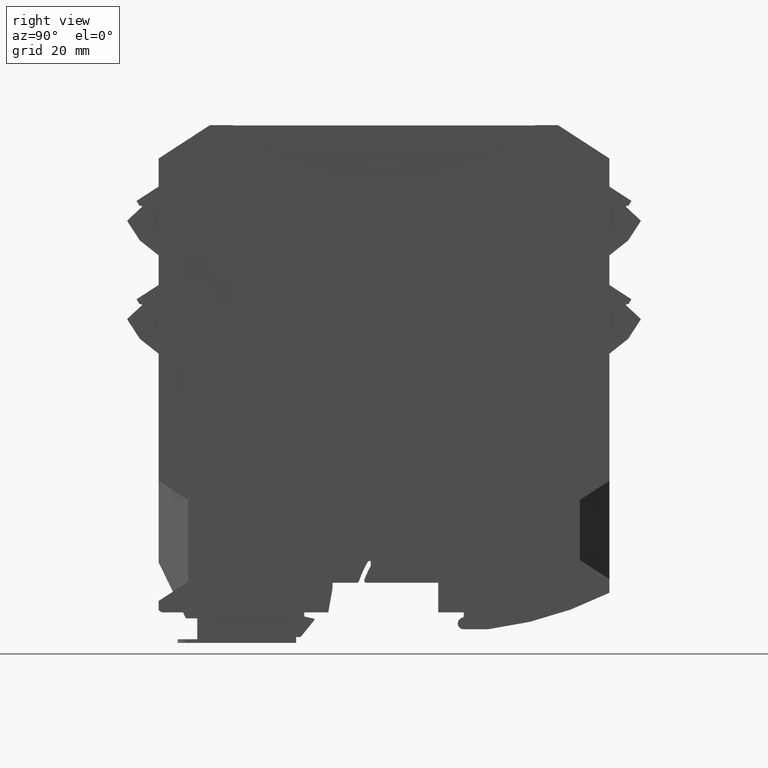
[diagram: clean part render]
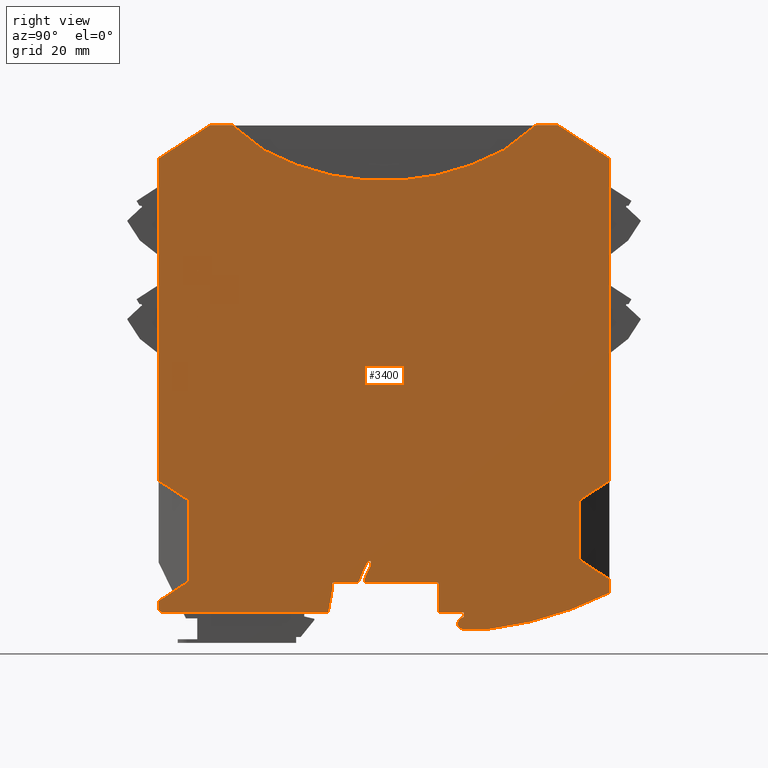
[diagram: same view with one face highlighted and labeled with its STEP entity id]
A machine part, right view. The second image highlights one B-rep face of the part: STEP entity #3400.
In plain terms, the highlighted planar face has unit normal (1, -0, -0).
Its self-contained STEP definition (entity closure, byte-faithful):
#10=CARTESIAN_POINT('',(12.5999992226559,49.5000000000242,
70.3846654518157));
#20=DIRECTION('',(1.,-5.21592700555424E-36,-2.28384227807285E-18));
#30=DIRECTION('',(-4.4182643184979E-30,1.,-1.93457734662532E-12));
#40=AXIS2_PLACEMENT_3D('',#10,#20,#30);
#50=PLANE('',#40);
#60=CARTESIAN_POINT('',(12.5999992226559,49.5000000003095,
138.507370060177));
#70=DIRECTION('',(1.24386761660573E-18,-0.838670567944371,
0.544639035016649));
#80=VECTOR('',#70,1.);
#90=LINE('',#60,#80);
#100=CARTESIAN_POINT('',(12.5999992226559,99.0000000001657,
106.361694196857));
#110=VERTEX_POINT('',#100);
#120=CARTESIAN_POINT('',(12.5999992226559,87.700000000391,
113.699999999874));
#130=VERTEX_POINT('',#120);
#140=EDGE_CURVE('',#110,#130,#90,.T.);
#150=ORIENTED_EDGE('',*,*,#140,.T.);
#160=CARTESIAN_POINT('',(12.5999992226559,99.0000000005153,
-45.6999999999939));
#170=DIRECTION('',(2.28384227811265E-18,-2.29927362408618E-12,1.));
#180=VECTOR('',#170,1.);
#190=LINE('',#160,#180);
#200=CARTESIAN_POINT('',(12.5999992226559,99.0000000003284,
35.5999999996861));
#210=VERTEX_POINT('',#200);
#220=EDGE_CURVE('',#210,#110,#190,.T.);
#230=ORIENTED_EDGE('',*,*,#220,.T.);
#240=CARTESIAN_POINT('',(12.5999992226559,49.5000000003095,
3.45432413651742));
#250=DIRECTION('',(1.24386761659875E-18,0.838670567946355,
0.544639035013593));
#260=VECTOR('',#250,1.);
#270=LINE('',#240,#260);
#280=CARTESIAN_POINT('',(12.5999992226559,92.4999999996498,
31.3788506439152));
#290=VERTEX_POINT('',#280);
#300=EDGE_CURVE('',#290,#210,#270,.T.);
#310=ORIENTED_EDGE('',*,*,#300,.T.);
#320=CARTESIAN_POINT('',(12.599999222115,92.5000000004453,
-45.6999999999939));
#330=DIRECTION('',(-1.96778369713401E-12,1.57319602239206E-12,-1.));
#340=VECTOR('',#330,1.);
#350=LINE('',#320,#340);
#360=CARTESIAN_POINT('',(12.5999992226559,92.5000000003448,
18.2211493557559));
#370=VERTEX_POINT('',#360);
#380=EDGE_CURVE('',#290,#370,#350,.T.);
#390=ORIENTED_EDGE('',*,*,#380,.F.);
#400=CARTESIAN_POINT('',(12.5999992226559,49.5000000003095,
46.1456756156977));
#410=DIRECTION('',(1.24386760884534E-18,-0.838670570151032,
0.544639031618689));
#420=VECTOR('',#410,1.);
#430=LINE('',#400,#420);
#440=CARTESIAN_POINT('',(12.5999992226559,99.0000000003781,
14.0000000373745));
#450=VERTEX_POINT('',#440);
#460=EDGE_CURVE('',#450,#370,#430,.T.);
#470=ORIENTED_EDGE('',*,*,#460,.T.);
#480=CARTESIAN_POINT('',(12.5999992226559,99.0000000003849,
11.0077156020573));
#490=VERTEX_POINT('',#480);
#500=EDGE_CURVE('',#490,#450,#190,.T.);
#510=ORIENTED_EDGE('',*,*,#500,.T.);
#520=CARTESIAN_POINT('',(12.5999992226559,63.0000000001872,
82.4499999999246));
#530=DIRECTION('',(-1.,5.21592700555424E-36,2.28384227807285E-18));
#540=DIRECTION('',(4.191076862855E-30,-1.,1.83510136361891E-12));
#550=AXIS2_PLACEMENT_3D('',#520,#530,#540);
#560=CIRCLE('',#550,80.);
#570=CARTESIAN_POINT('',(12.5999992226559,72.3646943356782,
2.99999999990685));
#580=VERTEX_POINT('',#570);
#590=EDGE_CURVE('',#490,#580,#560,.T.);
#600=ORIENTED_EDGE('',*,*,#590,.F.);
#610=CARTESIAN_POINT('',(12.5999992226559,49.5000000002384,
2.99999999994881));
#620=DIRECTION('',(-4.191076862855E-30,1.,-1.83510136361891E-12));
#630=VECTOR('',#620,1.);
#640=LINE('',#610,#630);
#650=CARTESIAN_POINT('',(12.5999992226559,66.9500000002348,
2.99999999991678));
#660=VERTEX_POINT('',#650);
#670=EDGE_CURVE('',#660,#580,#640,.T.);
#680=ORIENTED_EDGE('',*,*,#670,.T.);
#690=CARTESIAN_POINT('',(12.5999992226559,66.950000000237,
4.24999999991681));
#700=DIRECTION('',(1.,-5.21592700555424E-36,-2.28384227807285E-18));
#710=DIRECTION('',(2.28384227807285E-18,1.93457734662532E-12,1.));
#720=AXIS2_PLACEMENT_3D('',#690,#700,#710);
#730=CIRCLE('',#720,1.25);
#740=CARTESIAN_POINT('',(12.5999992226559,65.700000000237,
4.24999999991913));
#750=VERTEX_POINT('',#740);
#760=EDGE_CURVE('',#750,#660,#730,.T.);
#770=ORIENTED_EDGE('',*,*,#760,.T.);
#780=CARTESIAN_POINT('',(12.5999992226559,65.7000000001454,
-45.7000000000849));
#790=DIRECTION('',(-2.28384227807285E-18,-1.83510136361891E-12,-1.));
#800=VECTOR('',#790,1.);
#810=LINE('',#780,#800);
#820=CARTESIAN_POINT('',(12.5999992226559,65.7000000002371,
4.29746221830715));
#830=VERTEX_POINT('',#820);
#840=EDGE_CURVE('',#830,#750,#810,.T.);
#850=ORIENTED_EDGE('',*,*,#840,.T.);
#860=CARTESIAN_POINT('',(12.5999992226559,66.9500000002371,
4.29746221830483));
#870=DIRECTION('',(1.,-5.21592700555424E-36,-2.28384227807285E-18));
#880=DIRECTION('',(2.28384227807285E-18,1.83510136361891E-12,1.));
#890=AXIS2_PLACEMENT_3D('',#860,#870,#880);
#900=CIRCLE('',#890,1.25);
#910=CARTESIAN_POINT('',(12.5999992226559,66.4217271730634,
5.43034695210164));
#920=VERTEX_POINT('',#910);
#930=EDGE_CURVE('',#920,#830,#900,.T.);
#940=ORIENTED_EDGE('',*,*,#930,.T.);
#950=CARTESIAN_POINT('',(12.5999992226559,49.5000000002279,
-2.46038401776329));
#960=DIRECTION('',(-9.65193453645269E-19,-0.906307787037426,
-0.422618261739036));
#970=VECTOR('',#960,1.);
#980=LINE('',#950,#970);
#990=CARTESIAN_POINT('',(12.5999992226559,67.0000000002397,
5.69999999991563));
#1000=VERTEX_POINT('',#990);
#1010=EDGE_CURVE('',#1000,#920,#980,.T.);
#1020=ORIENTED_EDGE('',*,*,#1010,.T.);
#1030=CARTESIAN_POINT('',(12.5999992226559,67.0000000001454,
-45.7000000000874));
#1040=DIRECTION('',(-2.28384227807285E-18,-1.83510136361891E-12,-1.));
#1050=VECTOR('',#1040,1.);
#1060=LINE('',#1030,#1050);
#1070=CARTESIAN_POINT('',(12.5999992226559,67.0000000002416,
6.69999999991909));
#1080=VERTEX_POINT('',#1070);
#1090=EDGE_CURVE('',#1080,#1000,#1060,.T.);
#1100=ORIENTED_EDGE('',*,*,#1090,.T.);
#1110=CARTESIAN_POINT('',(12.5999992226559,49.5000000002456,
6.6999999999496));
#1120=DIRECTION('',(-3.98011708261516E-30,1.,-1.7427308079701E-12));
#1130=VECTOR('',#1120,1.);
#1140=LINE('',#1110,#1130);
#1150=CARTESIAN_POINT('',(12.5999992226559,61.4000000002423,
6.69999999992885));
#1160=VERTEX_POINT('',#1150);
#1170=EDGE_CURVE('',#1160,#1080,#1140,.T.);
#1180=ORIENTED_EDGE('',*,*,#1170,.T.);
#1190=CARTESIAN_POINT('',(12.5999992226559,61.4000000001461,
-45.7000000000766));
#1200=DIRECTION('',(-2.28384227807285E-18,-1.83510136361891E-12,-1.));
#1210=VECTOR('',#1200,1.);
#1220=LINE('',#1190,#1210);
#1230=CARTESIAN_POINT('',(12.5999992226559,61.4000000002542,
13.1999999999263));
#1240=VERTEX_POINT('',#1230);
#1250=EDGE_CURVE('',#1240,#1160,#1220,.T.);
#1260=ORIENTED_EDGE('',*,*,#1250,.T.);
#1270=CARTESIAN_POINT('',(12.5999992226559,49.5000000002582,
13.1999999999481));
#1280=DIRECTION('',(-4.191076862855E-30,1.,-1.83510136361891E-12));
#1290=VECTOR('',#1280,1.);
#1300=LINE('',#1270,#1290);
#1310=CARTESIAN_POINT('',(12.5999992226559,45.6495901681225,
13.1999999999552));
#1320=VERTEX_POINT('',#1310);
#1330=EDGE_CURVE('',#1320,#1240,#1300,.T.);
#1340=ORIENTED_EDGE('',*,*,#1330,.T.);
#1350=CARTESIAN_POINT('',(12.5999992226559,45.6495901681234,
13.6999999999552));
#1360=DIRECTION('',(1.,-5.21592700555424E-36,-2.28384227807285E-18));
#1370=DIRECTION('',(-4.191076862855E-30,1.,-1.83510136361891E-12));
#1380=AXIS2_PLACEMENT_3D('',#1350,#1360,#1370);
#1390=CIRCLE('',#1380,0.5);
#1400=CARTESIAN_POINT('',(12.5999992226559,45.181379426191,
13.8754385964472));
#1410=VERTEX_POINT('',#1400);
#1420=EDGE_CURVE('',#1410,#1320,#1390,.T.);
#1430=ORIENTED_EDGE('',*,*,#1420,.T.);
#1440=CARTESIAN_POINT('',(12.5999992226559,67.0000000002411,
5.69999999991688));
#1450=DIRECTION('',(1.,-5.21592700555424E-36,-2.28384227807285E-18));
#1460=DIRECTION('',(-4.191076862855E-30,1.,-1.83510136361891E-12));
#1470=AXIS2_PLACEMENT_3D('',#1440,#1450,#1460);
#1480=CIRCLE('',#1470,23.3);
#1490=CARTESIAN_POINT('',(12.5999992226559,46.5900000002596,
16.939301579675));
#1500=VERTEX_POINT('',#1490);
#1510=EDGE_CURVE('',#1500,#1410,#1480,.T.);
#1520=ORIENTED_EDGE('',*,*,#1510,.T.);
#1530=CARTESIAN_POINT('',(12.5999992226559,46.5900000001446,
-45.700000000048));
#1540=DIRECTION('',(2.28384227807285E-18,1.83510136361891E-12,1.));
#1550=VECTOR('',#1540,1.);
#1560=LINE('',#1530,#1550);
#1570=CARTESIAN_POINT('',(12.5999992226559,46.5900000002614,
17.9499999999543));
#1580=VERTEX_POINT('',#1570);
#1590=EDGE_CURVE('',#1500,#1580,#1560,.T.);
#1600=ORIENTED_EDGE('',*,*,#1590,.F.);
#1610=CARTESIAN_POINT('',(12.5999992226559,49.5000000002673,
17.949999999949));
#1620=DIRECTION('',(-4.191076862855E-30,1.,-1.83510136361891E-12));
#1630=VECTOR('',#1620,1.);
#1640=LINE('',#1610,#1630);
#1650=CARTESIAN_POINT('',(12.5999992226559,46.0136353793961,
17.9499999999554));
#1660=VERTEX_POINT('',#1650);
#1670=EDGE_CURVE('',#1660,#1580,#1640,.T.);
#1680=ORIENTED_EDGE('',*,*,#1670,.T.);
#1690=CARTESIAN_POINT('',(12.5999992226559,67.0000000002411,
5.69999999991688));
#1700=DIRECTION('',(1.,-5.21592700555424E-36,-2.28384227807285E-18));
#1710=DIRECTION('',(-4.191076862855E-30,1.,-1.83510136361891E-12));
#1720=AXIS2_PLACEMENT_3D('',#1690,#1700,#1710);
#1730=CIRCLE('',#1720,24.3);
#1740=CARTESIAN_POINT('',(12.5999992226559,43.9990297904329,
13.5387096773776));
#1750=VERTEX_POINT('',#1740);
#1760=EDGE_CURVE('',#1660,#1750,#1730,.T.);
#1770=ORIENTED_EDGE('',*,*,#1760,.F.);
#1780=CARTESIAN_POINT('',(12.5999992226559,43.5257587984616,
13.6999999999591));
#1790=DIRECTION('',(1.,-5.21592700555424E-36,-2.28384227807285E-18));
#1800=DIRECTION('',(-4.191076862855E-30,1.,-1.83510136361891E-12));
#1810=AXIS2_PLACEMENT_3D('',#1780,#1790,#1800);
#1820=CIRCLE('',#1810,0.5);
#1830=CARTESIAN_POINT('',(12.5999992226559,43.5257587984607,
13.1999999999591));
#1840=VERTEX_POINT('',#1830);
#1850=EDGE_CURVE('',#1840,#1750,#1820,.T.);
#1860=ORIENTED_EDGE('',*,*,#1850,.T.);
#1870=CARTESIAN_POINT('',(12.5999992226559,49.5000000002582,
13.1999999999481));
#1880=DIRECTION('',(-4.191076862855E-30,1.,-1.83510136361891E-12));
#1890=VECTOR('',#1880,1.);
#1900=LINE('',#1870,#1890);
#1910=CARTESIAN_POINT('',(12.5999992226559,38.2000000002177,
13.1999999999688));
#1920=VERTEX_POINT('',#1910);
#1930=EDGE_CURVE('',#1920,#1840,#1900,.T.);
#1940=ORIENTED_EDGE('',*,*,#1930,.T.);
#1950=CARTESIAN_POINT('',(12.5999992226559,38.2000000001046,
-45.7000000000317));
#1960=DIRECTION('',(-2.28384227807285E-18,-1.92039736359231E-12,-1.));
#1970=VECTOR('',#1960,1.);
#1980=LINE('',#1950,#1970);
#1990=CARTESIAN_POINT('',(12.5999992226559,38.2000000002154,
11.9999999997522));
#2000=VERTEX_POINT('',#1990);
#2010=EDGE_CURVE('',#1920,#2000,#1980,.T.);
#2020=ORIENTED_EDGE('',*,*,#2010,.F.);
#2030=CARTESIAN_POINT('',(12.5999992226559,28.0259332132613,
-45.7000000000121));
#2040=DIRECTION('',(-2.24914558210242E-18,-0.173648177668871,
-0.984807753011866));
#2050=VECTOR('',#2040,1.);
#2060=LINE('',#2030,#2050);
#2070=CARTESIAN_POINT('',(12.5999992226559,37.28309970056,
6.79999999997452));
#2080=VERTEX_POINT('',#2070);
#2090=EDGE_CURVE('',#2000,#2080,#2060,.T.);
#2100=ORIENTED_EDGE('',*,*,#2090,.F.);
#2110=CARTESIAN_POINT('',(12.5999992226559,37.2830997004592,
-45.70000000003));
#2120=DIRECTION('',(-2.28384227807285E-18,-1.92039736359231E-12,-1.));
#2130=VECTOR('',#2120,1.);
#2140=LINE('',#2110,#2130);
#2150=CARTESIAN_POINT('',(12.5999992226559,37.2830997005598,
6.69999999997433));
#2160=VERTEX_POINT('',#2150);
#2170=EDGE_CURVE('',#2080,#2160,#2140,.T.);
#2180=ORIENTED_EDGE('',*,*,#2170,.F.);
#2190=CARTESIAN_POINT('',(12.5999992226559,49.5000000002456,
6.69999999995087));
#2200=DIRECTION('',(-4.38587947374476E-30,1.,-1.92039736359231E-12));
#2210=VECTOR('',#2200,1.);
#2220=LINE('',#2190,#2210);
#2230=CARTESIAN_POINT('',(12.5999992226559,0.730742699295668,
6.70000000004453));
#2240=VERTEX_POINT('',#2230);
#2250=EDGE_CURVE('',#2240,#2160,#2220,.T.);
#2260=ORIENTED_EDGE('',*,*,#2250,.T.);
#2270=CARTESIAN_POINT('',(12.5999992226559,49.5000000003095,
-24.9711260059805));
#2280=DIRECTION('',(1.24386761660599E-18,-0.838670567944297,
0.544639035016763));
#2290=VECTOR('',#2280,1.);
#2300=LINE('',#2270,#2290);
#2310=CARTESIAN_POINT('',(12.5999992226559,-4.76489958600723E-11,
7.17454985767387));
#2320=VERTEX_POINT('',#2310);
#2330=EDGE_CURVE('',#2240,#2320,#2300,.T.);
#2340=ORIENTED_EDGE('',*,*,#2330,.F.);
#2350=CARTESIAN_POINT('',(12.5999992226559,-1.62927449309791E-10,
-45.6999999999939));
#2360=DIRECTION('',(2.28384227811265E-18,1.83510136361891E-12,1.));
#2370=VECTOR('',#2360,1.);
#2380=LINE('',#2350,#2370);
#2390=CARTESIAN_POINT('',(12.5999992226559,-4.74784656034899E-11,
9.20000000000948));
#2400=VERTEX_POINT('',#2390);
#2410=EDGE_CURVE('',#2320,#2400,#2380,.T.);
#2420=ORIENTED_EDGE('',*,*,#2410,.F.);
#2430=CARTESIAN_POINT('',(12.5999992226559,49.5000000003095,
41.3456758635122));
#2440=DIRECTION('',(-1.24386761660187E-18,-0.83867056794547,
-0.544639035014957));
#2450=VECTOR('',#2440,1.);
#2460=LINE('',#2430,#2450);
#2470=CARTESIAN_POINT('',(12.5999992226559,6.5000000008984,
13.4211493560705));
#2480=VERTEX_POINT('',#2470);
#2490=EDGE_CURVE('',#2480,#2400,#2460,.T.);
#2500=ORIENTED_EDGE('',*,*,#2490,.T.);
#2510=CARTESIAN_POINT('',(12.5999992222869,6.50000000015073,
-45.6999999999939));
#2520=DIRECTION('',(2.28384227817825E-18,1.83510136361891E-12,1.));
#2530=VECTOR('',#2520,1.);
#2540=LINE('',#2510,#2530);
#2550=CARTESIAN_POINT('',(12.5999992226559,6.50000000029213,
31.378850643978));
#2560=VERTEX_POINT('',#2550);
#2570=EDGE_CURVE('',#2480,#2560,#2540,.T.);
#2580=ORIENTED_EDGE('',*,*,#2570,.F.);
#2590=CARTESIAN_POINT('',(12.5999992226559,49.5000000003095,
3.45432413606024));
#2600=DIRECTION('',(-1.24386761661498E-18,0.838670567941741,
-0.544639035020699));
#2610=VECTOR('',#2600,1.);
#2620=LINE('',#2590,#2610);
#2630=CARTESIAN_POINT('',(12.5999992226559,-1.36637368086667E-11,
35.6000000000229));
#2640=VERTEX_POINT('',#2630);
#2650=EDGE_CURVE('',#2640,#2560,#2620,.T.);
#2660=ORIENTED_EDGE('',*,*,#2650,.T.);
#2670=CARTESIAN_POINT('',(12.5999992226559,-1.66863856065902E-10,
-45.6999999999939));
#2680=DIRECTION('',(2.28384227811265E-18,1.88483935512212E-12,1.));
#2690=VECTOR('',#2680,1.);
#2700=LINE('',#2670,#2690);
#2710=CARTESIAN_POINT('',(12.5999992226559,1.1974776725765E-10,
106.361694196724));
#2720=VERTEX_POINT('',#2710);
#2730=EDGE_CURVE('',#2640,#2720,#2700,.T.);
#2740=ORIENTED_EDGE('',*,*,#2730,.F.);
#2750=CARTESIAN_POINT('',(12.5999992226559,49.5000000004843,
138.507370060058));
#2760=DIRECTION('',(1.24386965445133E-18,0.838670567946785,
0.544639035012931));
#2770=VECTOR('',#2760,1.);
#2780=LINE('',#2750,#2770);
#2790=CARTESIAN_POINT('',(12.5999992226559,11.300000000423,
113.700000000014));
#2800=VERTEX_POINT('',#2790);
#2810=EDGE_CURVE('',#2720,#2800,#2780,.T.);
#2820=ORIENTED_EDGE('',*,*,#2810,.F.);
#2830=CARTESIAN_POINT('',(12.5999992226559,49.5000000003095,
113.699999999944));
#2840=DIRECTION('',(-4.19106999653817E-30,1.,-1.83510136361891E-12));
#2850=VECTOR('',#2840,1.);
#2860=LINE('',#2830,#2850);
#2870=CARTESIAN_POINT('',(12.5999992226559,16.307572487494,
113.700000000005));
#2880=VERTEX_POINT('',#2870);
#2890=EDGE_CURVE('',#2800,#2880,#2860,.T.);
#2900=ORIENTED_EDGE('',*,*,#2890,.F.);
#2910=CARTESIAN_POINT('',(12.5999992226559,16.3075724872853,0.));
#2920=DIRECTION('',(2.28384227812203E-18,1.83510136361891E-12,1.));
#2930=VECTOR('',#2920,1.);
#2940=LINE('',#2910,#2930);
#2950=CARTESIAN_POINT('',(12.5999992226559,16.3075724874938,
113.600000000005));
#2960=VERTEX_POINT('',#2950);
#2970=EDGE_CURVE('',#2960,#2880,#2940,.T.);
#2980=ORIENTED_EDGE('',*,*,#2970,.T.);
#2990=CARTESIAN_POINT('',(12.5999992226559,49.5000000003095,
87.6672334752695));
#3000=DIRECTION('',(-1.40607140273701E-18,0.788010753605531,
-0.615661475327183));
#3010=VECTOR('',#3000,1.);
#3020=LINE('',#2990,#3010);
#3030=CARTESIAN_POINT('',(12.599999222618,23.2192573012238,
108.200000000084));
#3040=VERTEX_POINT('',#3030);
#3050=EDGE_CURVE('',#2960,#3040,#3020,.T.);
#3060=ORIENTED_EDGE('',*,*,#3050,.F.);
#3070=CARTESIAN_POINT('',(12.599999222618,49.5000000005202,
156.393092299449));
#3080=DIRECTION('',(-1.,5.21592700533538E-36,2.28384227807285E-18));
#3090=DIRECTION('',(4.191076862855E-30,-1.,1.83510136361891E-12));
#3100=AXIS2_PLACEMENT_3D('',#3070,#3080,#3090);
#3110=CIRCLE('',#3100,54.8930922995028);
#3120=CARTESIAN_POINT('',(12.599999222618,75.7807426992575,
108.199999999779));
#3130=VERTEX_POINT('',#3120);
#3140=EDGE_CURVE('',#3130,#3040,#3110,.T.);
#3150=ORIENTED_EDGE('',*,*,#3140,.T.);
#3160=CARTESIAN_POINT('',(12.5999992226559,49.5000000003095,
87.6672334752016));
#3170=DIRECTION('',(-1.4060714027304E-18,-0.788010753607793,
-0.615661475324288));
#3180=VECTOR('',#3170,1.);
#3190=LINE('',#3160,#3180);
#3200=CARTESIAN_POINT('',(12.5999992226559,82.6924275133112,
113.599999999883));
#3210=VERTEX_POINT('',#3200);
#3220=EDGE_CURVE('',#3210,#3130,#3190,.T.);
#3230=ORIENTED_EDGE('',*,*,#3220,.T.);
#3240=CARTESIAN_POINT('',(12.5999992226559,82.6924275131028,0.));
#3250=DIRECTION('',(-2.28384227812203E-18,-1.83510136361891E-12,-1.));
#3260=VECTOR('',#3250,1.);
#3270=LINE('',#3240,#3260);
#3280=CARTESIAN_POINT('',(12.5999992226559,82.6924275133114,
113.699999999883));
#3290=VERTEX_POINT('',#3280);
#3300=EDGE_CURVE('',#3290,#3210,#3270,.T.);
#3310=ORIENTED_EDGE('',*,*,#3300,.T.);
#3320=CARTESIAN_POINT('',(12.5999992226559,49.5000000003095,
113.699999999944));
#3330=DIRECTION('',(-4.19106999653817E-30,1.,-1.83510136361891E-12));
#3340=VECTOR('',#3330,1.);
#3350=LINE('',#3320,#3340);
#3360=EDGE_CURVE('',#3290,#130,#3350,.T.);
#3370=ORIENTED_EDGE('',*,*,#3360,.F.);
#3380=EDGE_LOOP('',(#3370,#3310,#3230,#3150,#3060,#2980,#2900,#2820,
#2740,#2660,#2580,#2500,#2420,#2340,#2260,#2180,#2100,#2020,#1940,#1860,
#1770,#1680,#1600,#1520,#1430,#1340,#1260,#1180,#1100,#1020,#940,#850,
#770,#680,#600,#510,#470,#390,#310,#230,#150));
#3390=FACE_OUTER_BOUND('',#3380,.T.);
#3400=ADVANCED_FACE('',(#3390),#50,.T.);